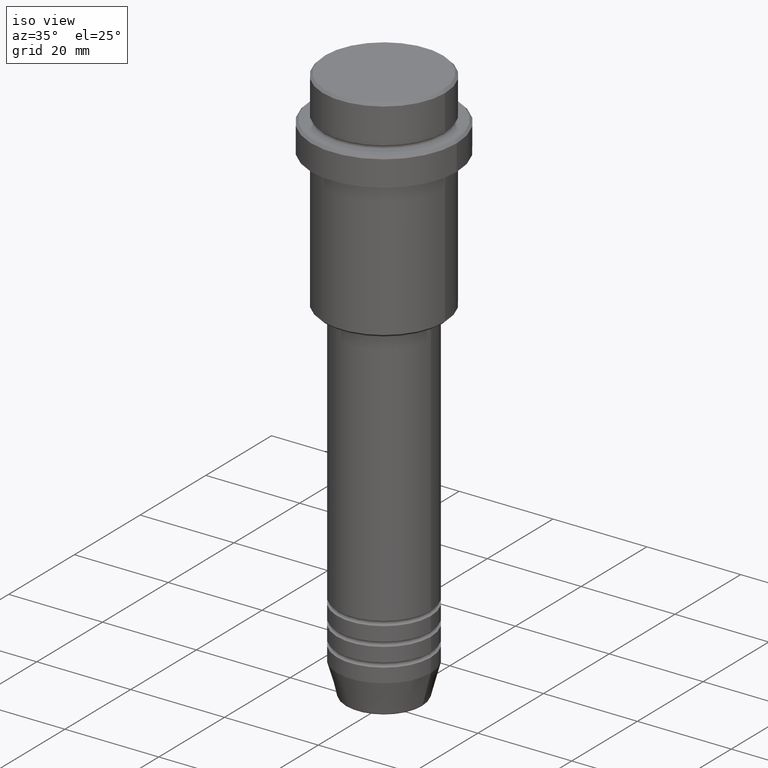
[diagram: clean part render]
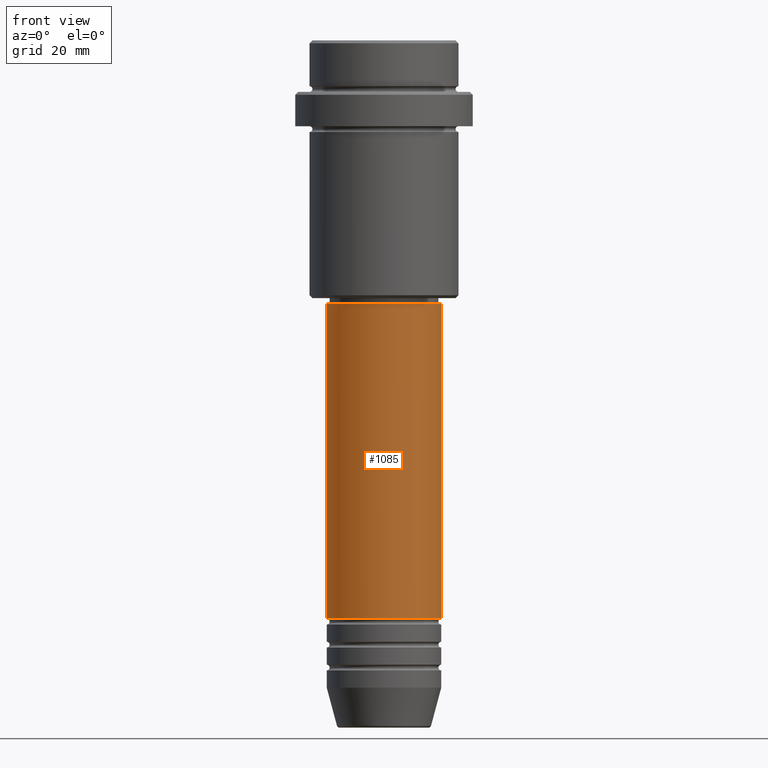
[diagram: tour spotlight — one face highlighted and labeled with its STEP entity id]
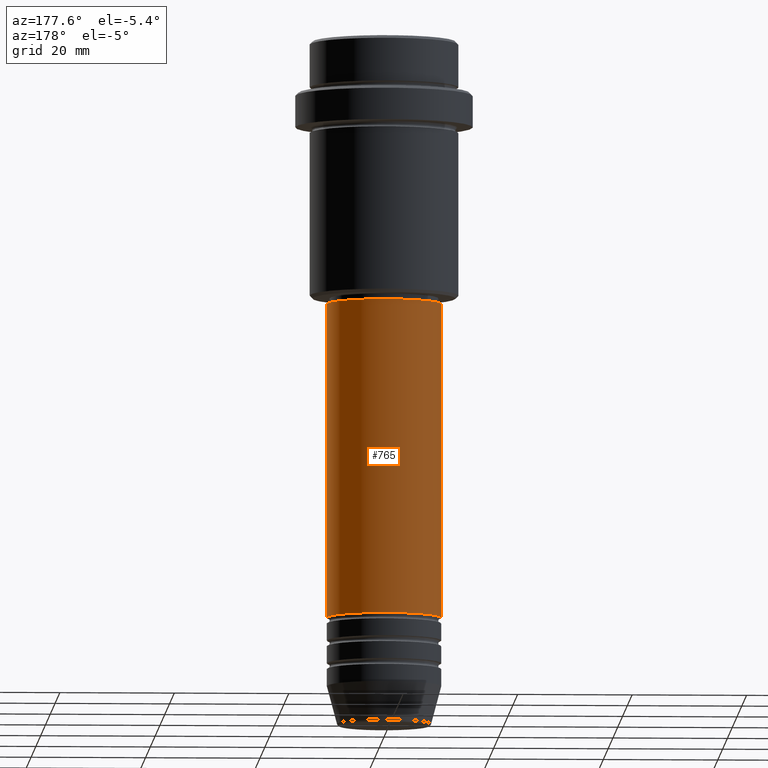
[diagram: tour spotlight — one face highlighted and labeled with its STEP entity id]
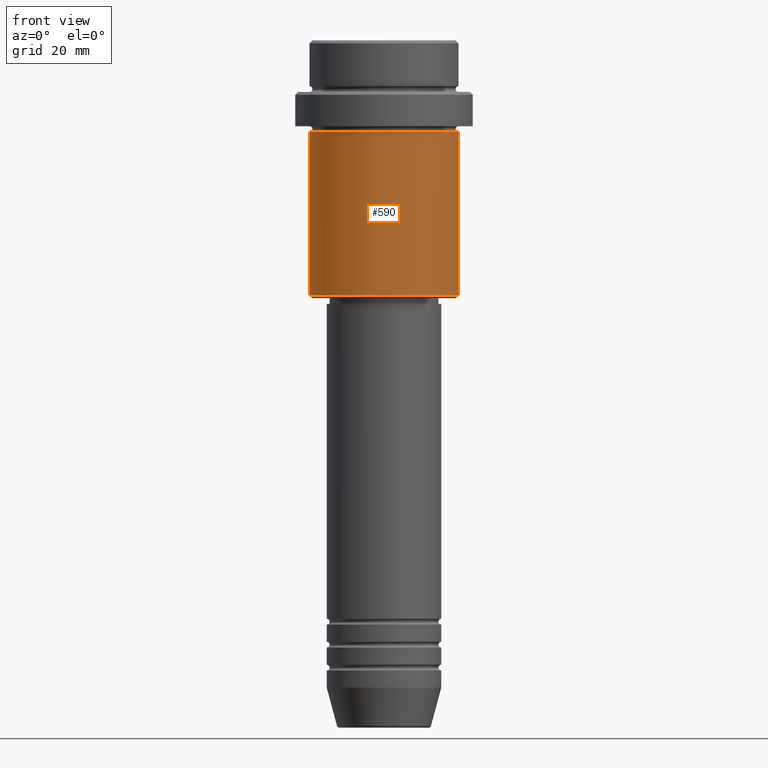
[diagram: tour spotlight — one face highlighted and labeled with its STEP entity id]
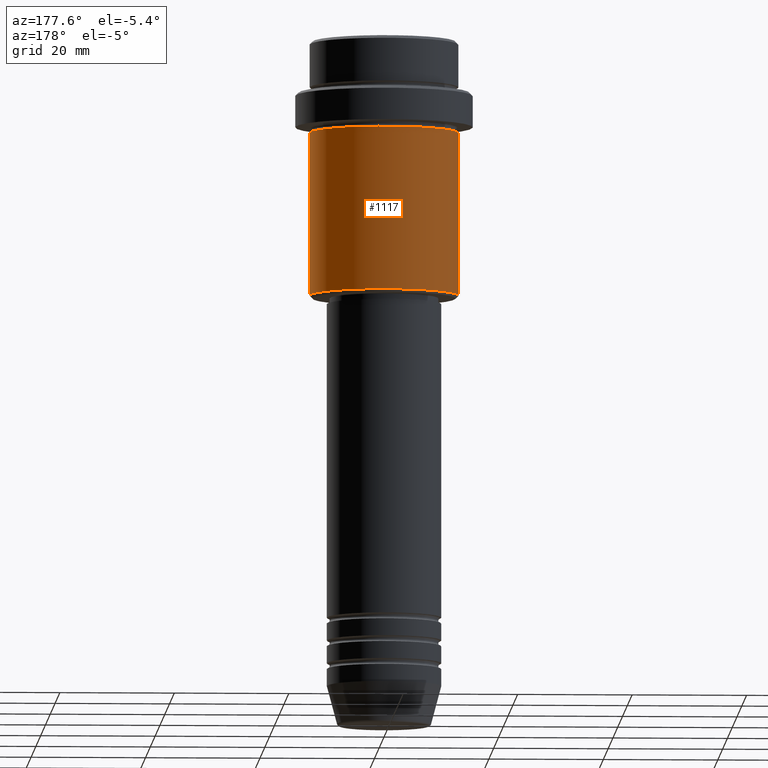
[diagram: tour spotlight — one face highlighted and labeled with its STEP entity id]
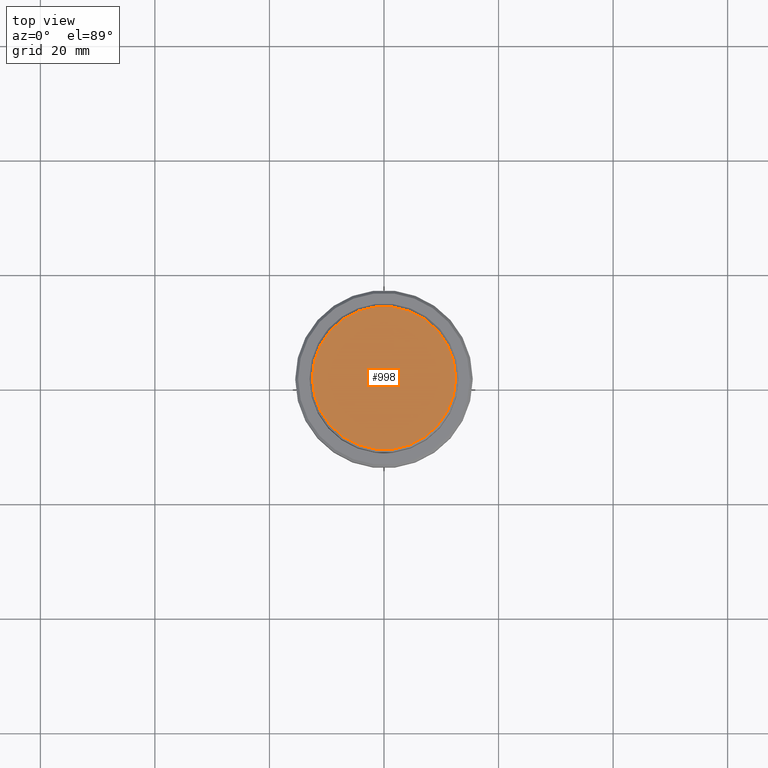
[diagram: tour spotlight — one face highlighted and labeled with its STEP entity id]
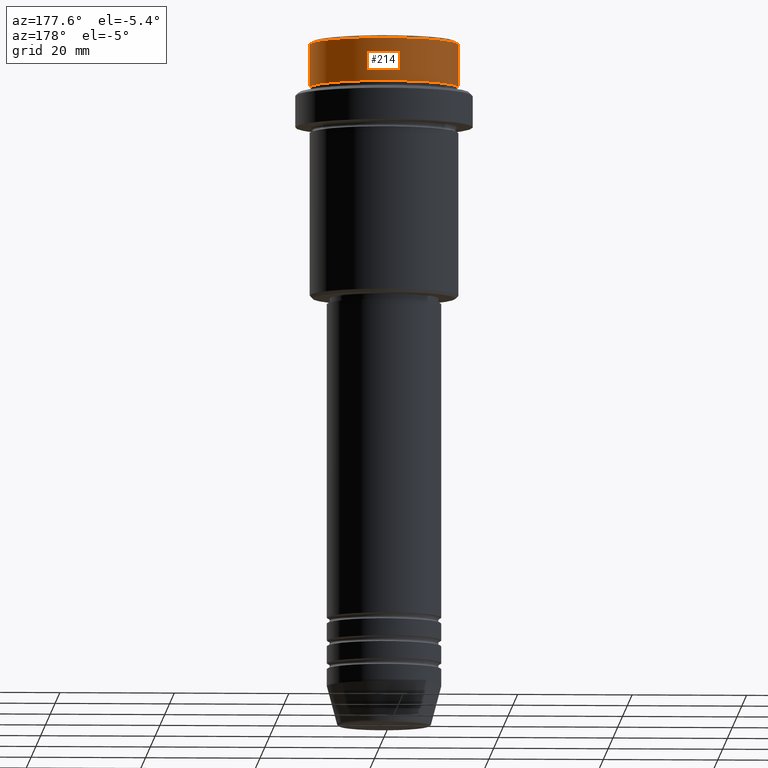
[diagram: tour spotlight — one face highlighted and labeled with its STEP entity id]
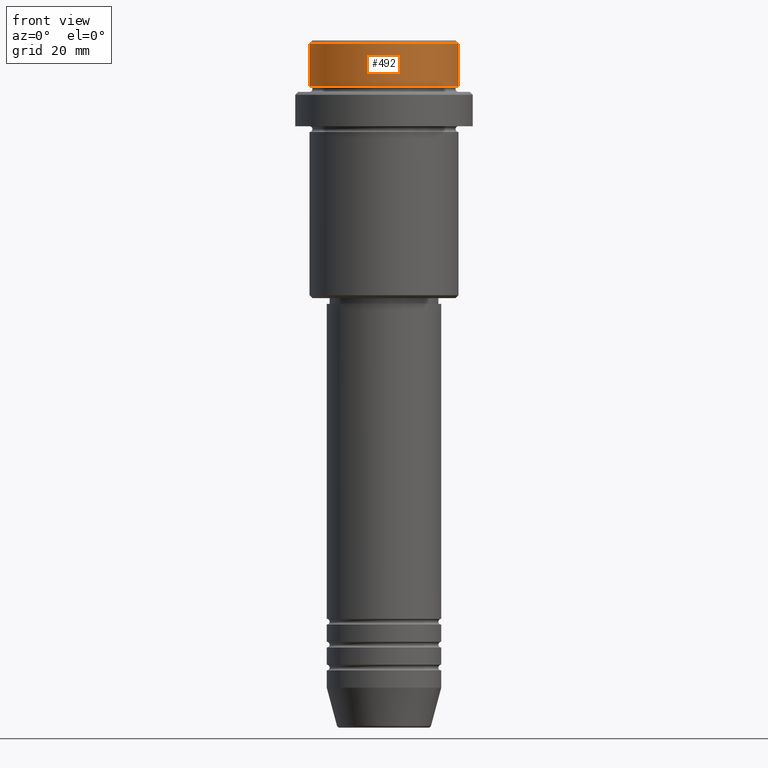
[diagram: tour spotlight — one face highlighted and labeled with its STEP entity id]
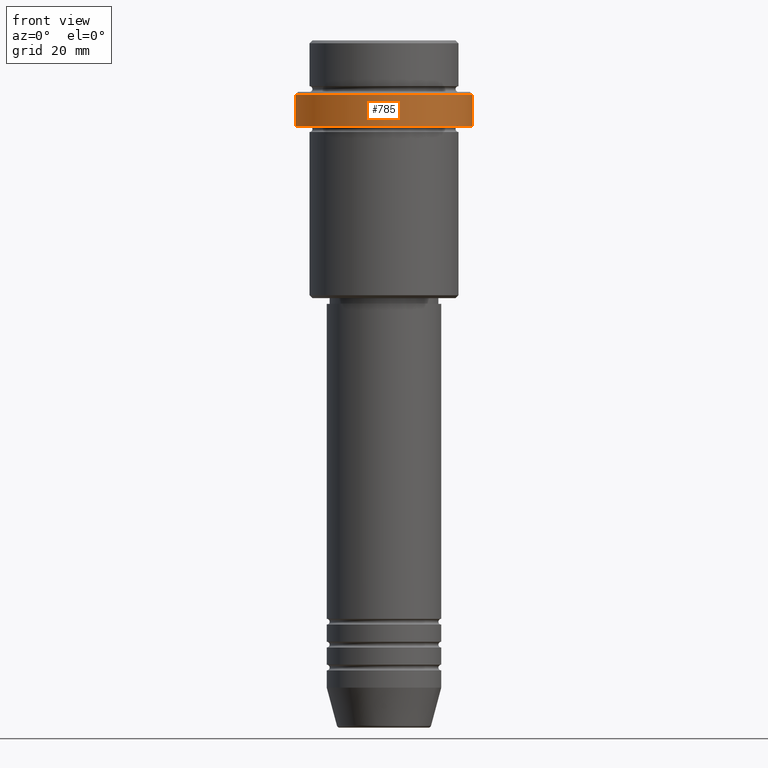
[diagram: tour spotlight — one face highlighted and labeled with its STEP entity id]
A machine part: a face-by-face anatomy tour. The part has 52 B-rep faces; the first image is the clean iso view, then the 8 largest visible faces are spotlighted one at a time (largest first), each with its STEP entity span.

Face 1 — front view, entity #1085. In plain terms, the highlighted cylindrical surface (partial cylindrical patch) has radius 10 mm, axis along (-0, -0, 1).
Definition (entity closure, byte-faithful):
#19 = CARTESIAN_POINT ( 'NONE',  ( 10.00000000000000178, 0.000000000000000000, -45.99999999999997868 ) ) ;
#38 = EDGE_CURVE ( 'NONE', #860, #1366, #849, .T. ) ;
#67 = CARTESIAN_POINT ( 'NONE',  ( -10.00000000000000178, 1.224646799147353454E-15, -45.99999999999997868 ) ) ;
#141 = CARTESIAN_POINT ( 'NONE',  ( 10.00000000000000178, 0.000000000000000000, 0.000000000000000000 ) ) ;
#174 = DIRECTION ( 'NONE',  ( -0.000000000000000000, -0.000000000000000000, 1.000000000000000000 ) ) ;
#204 = EDGE_CURVE ( 'NONE', #860, #1217, #250, .T. ) ;
#240 = DIRECTION ( 'NONE',  ( 1.000000000000000000, 0.000000000000000000, 0.000000000000000000 ) ) ;
#250 = LINE ( 'NONE', #1349, #728 ) ;
#283 = ORIENTED_EDGE ( 'NONE', *, *, #204, .F. ) ;
#297 = AXIS2_PLACEMENT_3D ( 'NONE', #1231, #174, #1056 ) ;
#359 = CYLINDRICAL_SURFACE ( 'NONE', #608, 10.00000000000000178 ) ;
#382 = DIRECTION ( 'NONE',  ( -0.000000000000000000, -0.000000000000000000, 1.000000000000000000 ) ) ;
#498 = EDGE_CURVE ( 'NONE', #1366, #531, #915, .T. ) ;
#512 = VECTOR ( 'NONE', #382, 1000.000000000000000 ) ;
#531 = VERTEX_POINT ( 'NONE', #19 ) ;
#539 = CARTESIAN_POINT ( 'NONE',  ( 10.00000000000000000, 0.000000000000000000, -100.9999999999998721 ) ) ;
#547 = CARTESIAN_POINT ( 'NONE',  ( 0.000000000000000000, 0.000000000000000000, -100.9999999999998721 ) ) ;
#583 = EDGE_CURVE ( 'NONE', #1217, #531, #1303, .T. ) ;
#608 = AXIS2_PLACEMENT_3D ( 'NONE', #999, #1325, #240 ) ;
#696 = DIRECTION ( 'NONE',  ( -0.000000000000000000, -0.000000000000000000, 1.000000000000000000 ) ) ;
#698 = ORIENTED_EDGE ( 'NONE', *, *, #583, .F. ) ;
#728 = VECTOR ( 'NONE', #696, 1000.000000000000000 ) ;
#783 = EDGE_LOOP ( 'NONE', ( #283, #1098, #1124, #698 ) ) ;
#849 = CIRCLE ( 'NONE', #1118, 10.00000000000000000 ) ;
#860 = VERTEX_POINT ( 'NONE', #1051 ) ;
#879 = DIRECTION ( 'NONE',  ( 1.000000000000000000, 0.000000000000000000, 0.000000000000000000 ) ) ;
#915 = LINE ( 'NONE', #141, #512 ) ;
#999 = CARTESIAN_POINT ( 'NONE',  ( 0.000000000000000000, 0.000000000000000000, 0.000000000000000000 ) ) ;
#1051 = CARTESIAN_POINT ( 'NONE',  ( -10.00000000000000000, 1.224646799147353256E-15, -100.9999999999998721 ) ) ;
#1056 = DIRECTION ( 'NONE',  ( 1.000000000000000000, 0.000000000000000000, 0.000000000000000000 ) ) ;
#1085 = ADVANCED_FACE ( 'NONE', ( #1340 ), #359, .T. ) ;
#1086 = DIRECTION ( 'NONE',  ( -0.000000000000000000, -0.000000000000000000, 1.000000000000000000 ) ) ;
#1098 = ORIENTED_EDGE ( 'NONE', *, *, #38, .T. ) ;
#1118 = AXIS2_PLACEMENT_3D ( 'NONE', #547, #1086, #879 ) ;
#1124 = ORIENTED_EDGE ( 'NONE', *, *, #498, .T. ) ;
#1217 = VERTEX_POINT ( 'NONE', #67 ) ;
#1231 = CARTESIAN_POINT ( 'NONE',  ( 0.000000000000000000, 0.000000000000000000, -45.99999999999997868 ) ) ;
#1303 = CIRCLE ( 'NONE', #297, 10.00000000000000178 ) ;
#1325 = DIRECTION ( 'NONE',  ( -0.000000000000000000, -0.000000000000000000, 1.000000000000000000 ) ) ;
#1340 = FACE_OUTER_BOUND ( 'NONE', #783, .T. ) ;
#1349 = CARTESIAN_POINT ( 'NONE',  ( -10.00000000000000178, 1.224646799147353454E-15, 0.000000000000000000 ) ) ;
#1366 = VERTEX_POINT ( 'NONE', #539 ) ;

Face 2 — auxiliary view, entity #765. In plain terms, the highlighted cylindrical surface (partial cylindrical patch) has radius 10 mm, axis along (-0, -0, 1).
Definition (entity closure, byte-faithful):
#19 = CARTESIAN_POINT ( 'NONE',  ( 10.00000000000000178, 0.000000000000000000, -45.99999999999997868 ) ) ;
#52 = AXIS2_PLACEMENT_3D ( 'NONE', #337, #779, #784 ) ;
#67 = CARTESIAN_POINT ( 'NONE',  ( -10.00000000000000178, 1.224646799147353454E-15, -45.99999999999997868 ) ) ;
#109 = ORIENTED_EDGE ( 'NONE', *, *, #248, .T. ) ;
#116 = FACE_OUTER_BOUND ( 'NONE', #164, .T. ) ;
#124 = DIRECTION ( 'NONE',  ( -0.000000000000000000, -0.000000000000000000, 1.000000000000000000 ) ) ;
#141 = CARTESIAN_POINT ( 'NONE',  ( 10.00000000000000178, 0.000000000000000000, 0.000000000000000000 ) ) ;
#164 = EDGE_LOOP ( 'NONE', ( #109, #887, #314, #613 ) ) ;
#200 = CARTESIAN_POINT ( 'NONE',  ( 0.000000000000000000, 0.000000000000000000, -45.99999999999997868 ) ) ;
#204 = EDGE_CURVE ( 'NONE', #860, #1217, #250, .T. ) ;
#248 = EDGE_CURVE ( 'NONE', #1366, #860, #1195, .T. ) ;
#250 = LINE ( 'NONE', #1349, #728 ) ;
#314 = ORIENTED_EDGE ( 'NONE', *, *, #453, .F. ) ;
#337 = CARTESIAN_POINT ( 'NONE',  ( 0.000000000000000000, 0.000000000000000000, -100.9999999999998721 ) ) ;
#382 = DIRECTION ( 'NONE',  ( -0.000000000000000000, -0.000000000000000000, 1.000000000000000000 ) ) ;
#425 = DIRECTION ( 'NONE',  ( 1.000000000000000000, 0.000000000000000000, 0.000000000000000000 ) ) ;
#453 = EDGE_CURVE ( 'NONE', #531, #1217, #875, .T. ) ;
#459 = CARTESIAN_POINT ( 'NONE',  ( 0.000000000000000000, 0.000000000000000000, 0.000000000000000000 ) ) ;
#463 = AXIS2_PLACEMENT_3D ( 'NONE', #200, #1397, #425 ) ;
#498 = EDGE_CURVE ( 'NONE', #1366, #531, #915, .T. ) ;
#512 = VECTOR ( 'NONE', #382, 1000.000000000000000 ) ;
#531 = VERTEX_POINT ( 'NONE', #19 ) ;
#539 = CARTESIAN_POINT ( 'NONE',  ( 10.00000000000000000, 0.000000000000000000, -100.9999999999998721 ) ) ;
#613 = ORIENTED_EDGE ( 'NONE', *, *, #498, .F. ) ;
#696 = DIRECTION ( 'NONE',  ( -0.000000000000000000, -0.000000000000000000, 1.000000000000000000 ) ) ;
#728 = VECTOR ( 'NONE', #696, 1000.000000000000000 ) ;
#765 = ADVANCED_FACE ( 'NONE', ( #116 ), #1229, .T. ) ;
#779 = DIRECTION ( 'NONE',  ( -0.000000000000000000, -0.000000000000000000, 1.000000000000000000 ) ) ;
#784 = DIRECTION ( 'NONE',  ( 1.000000000000000000, 0.000000000000000000, 0.000000000000000000 ) ) ;
#860 = VERTEX_POINT ( 'NONE', #1051 ) ;
#875 = CIRCLE ( 'NONE', #463, 10.00000000000000178 ) ;
#887 = ORIENTED_EDGE ( 'NONE', *, *, #204, .T. ) ;
#915 = LINE ( 'NONE', #141, #512 ) ;
#986 = DIRECTION ( 'NONE',  ( 1.000000000000000000, 0.000000000000000000, 0.000000000000000000 ) ) ;
#1051 = CARTESIAN_POINT ( 'NONE',  ( -10.00000000000000000, 1.224646799147353256E-15, -100.9999999999998721 ) ) ;
#1142 = AXIS2_PLACEMENT_3D ( 'NONE', #459, #124, #986 ) ;
#1195 = CIRCLE ( 'NONE', #52, 10.00000000000000000 ) ;
#1217 = VERTEX_POINT ( 'NONE', #67 ) ;
#1229 = CYLINDRICAL_SURFACE ( 'NONE', #1142, 10.00000000000000178 ) ;
#1349 = CARTESIAN_POINT ( 'NONE',  ( -10.00000000000000178, 1.224646799147353454E-15, 0.000000000000000000 ) ) ;
#1366 = VERTEX_POINT ( 'NONE', #539 ) ;
#1397 = DIRECTION ( 'NONE',  ( -0.000000000000000000, -0.000000000000000000, 1.000000000000000000 ) ) ;

Face 3 — front view, entity #590. In plain terms, the highlighted cylindrical surface (partial cylindrical patch) has radius 13 mm, axis along (-0, -0, 1).
Definition (entity closure, byte-faithful):
#12 = CARTESIAN_POINT ( 'NONE',  ( 13.00000000000000000, 0.000000000000000000, -44.50000000000000000 ) ) ;
#69 = EDGE_CURVE ( 'NONE', #955, #1063, #1415, .T. ) ;
#102 = CIRCLE ( 'NONE', #1280, 13.00000000000000000 ) ;
#115 = ORIENTED_EDGE ( 'NONE', *, *, #69, .F. ) ;
#162 = CYLINDRICAL_SURFACE ( 'NONE', #1034, 13.00000000000000000 ) ;
#163 = LINE ( 'NONE', #1370, #444 ) ;
#167 = VERTEX_POINT ( 'NONE', #12 ) ;
#186 = DIRECTION ( 'NONE',  ( 1.000000000000000000, 0.000000000000000000, 0.000000000000000000 ) ) ;
#228 = DIRECTION ( 'NONE',  ( -0.000000000000000000, -0.000000000000000000, 1.000000000000000000 ) ) ;
#239 = VERTEX_POINT ( 'NONE', #1318 ) ;
#265 = DIRECTION ( 'NONE',  ( -1.000000000000000000, 0.000000000000000000, 0.000000000000000000 ) ) ;
#291 = CARTESIAN_POINT ( 'NONE',  ( 0.000000000000000000, 0.000000000000000000, 0.000000000000000000 ) ) ;
#322 = EDGE_LOOP ( 'NONE', ( #115, #418, #1146, #1168 ) ) ;
#327 = CARTESIAN_POINT ( 'NONE',  ( -13.00000000000000000, 1.592040838891559095E-15, -16.00000000000000000 ) ) ;
#370 = DIRECTION ( 'NONE',  ( -0.000000000000000000, -0.000000000000000000, 1.000000000000000000 ) ) ;
#374 = CARTESIAN_POINT ( 'NONE',  ( -13.00000000000000000, 1.592040838891559095E-15, -44.50000000000000000 ) ) ;
#379 = CARTESIAN_POINT ( 'NONE',  ( 0.000000000000000000, 0.000000000000000000, -16.00000000000000000 ) ) ;
#398 = DIRECTION ( 'NONE',  ( -0.000000000000000000, -0.000000000000000000, 1.000000000000000000 ) ) ;
#418 = ORIENTED_EDGE ( 'NONE', *, *, #647, .T. ) ;
#424 = FACE_OUTER_BOUND ( 'NONE', #322, .T. ) ;
#444 = VECTOR ( 'NONE', #398, 1000.000000000000000 ) ;
#537 = AXIS2_PLACEMENT_3D ( 'NONE', #379, #1129, #801 ) ;
#590 = ADVANCED_FACE ( 'NONE', ( #424 ), #162, .T. ) ;
#647 = EDGE_CURVE ( 'NONE', #955, #167, #102, .T. ) ;
#687 = VECTOR ( 'NONE', #228, 1000.000000000000000 ) ;
#718 = EDGE_CURVE ( 'NONE', #167, #239, #163, .T. ) ;
#730 = DIRECTION ( 'NONE',  ( -0.000000000000000000, -0.000000000000000000, 1.000000000000000000 ) ) ;
#801 = DIRECTION ( 'NONE',  ( 1.000000000000000000, 0.000000000000000000, 0.000000000000000000 ) ) ;
#931 = EDGE_CURVE ( 'NONE', #1063, #239, #1143, .T. ) ;
#955 = VERTEX_POINT ( 'NONE', #374 ) ;
#1034 = AXIS2_PLACEMENT_3D ( 'NONE', #291, #730, #186 ) ;
#1063 = VERTEX_POINT ( 'NONE', #327 ) ;
#1129 = DIRECTION ( 'NONE',  ( -0.000000000000000000, -0.000000000000000000, 1.000000000000000000 ) ) ;
#1137 = CARTESIAN_POINT ( 'NONE',  ( 0.000000000000000000, 0.000000000000000000, -44.50000000000000000 ) ) ;
#1143 = CIRCLE ( 'NONE', #537, 13.00000000000000000 ) ;
#1146 = ORIENTED_EDGE ( 'NONE', *, *, #718, .T. ) ;
#1168 = ORIENTED_EDGE ( 'NONE', *, *, #931, .F. ) ;
#1206 = CARTESIAN_POINT ( 'NONE',  ( -13.00000000000000000, 1.592040838891559095E-15, 0.000000000000000000 ) ) ;
#1280 = AXIS2_PLACEMENT_3D ( 'NONE', #1137, #370, #265 ) ;
#1318 = CARTESIAN_POINT ( 'NONE',  ( 13.00000000000000000, 0.000000000000000000, -16.00000000000000000 ) ) ;
#1370 = CARTESIAN_POINT ( 'NONE',  ( 13.00000000000000000, 0.000000000000000000, 0.000000000000000000 ) ) ;
#1415 = LINE ( 'NONE', #1206, #687 ) ;

Face 4 — auxiliary view, entity #1117. In plain terms, the highlighted cylindrical surface (partial cylindrical patch) has radius 13 mm, axis along (-0, -0, 1).
Definition (entity closure, byte-faithful):
#3 = ORIENTED_EDGE ( 'NONE', *, *, #69, .T. ) ;
#12 = CARTESIAN_POINT ( 'NONE',  ( 13.00000000000000000, 0.000000000000000000, -44.50000000000000000 ) ) ;
#50 = CYLINDRICAL_SURFACE ( 'NONE', #878, 13.00000000000000000 ) ;
#69 = EDGE_CURVE ( 'NONE', #955, #1063, #1415, .T. ) ;
#120 = CARTESIAN_POINT ( 'NONE',  ( 0.000000000000000000, 0.000000000000000000, -16.00000000000000000 ) ) ;
#155 = DIRECTION ( 'NONE',  ( -0.000000000000000000, -0.000000000000000000, 1.000000000000000000 ) ) ;
#163 = LINE ( 'NONE', #1370, #444 ) ;
#167 = VERTEX_POINT ( 'NONE', #12 ) ;
#217 = EDGE_CURVE ( 'NONE', #239, #1063, #889, .T. ) ;
#221 = DIRECTION ( 'NONE',  ( 1.000000000000000000, 0.000000000000000000, 0.000000000000000000 ) ) ;
#228 = DIRECTION ( 'NONE',  ( -0.000000000000000000, -0.000000000000000000, 1.000000000000000000 ) ) ;
#239 = VERTEX_POINT ( 'NONE', #1318 ) ;
#327 = CARTESIAN_POINT ( 'NONE',  ( -13.00000000000000000, 1.592040838891559095E-15, -16.00000000000000000 ) ) ;
#346 = DIRECTION ( 'NONE',  ( 1.000000000000000000, 0.000000000000000000, 0.000000000000000000 ) ) ;
#374 = CARTESIAN_POINT ( 'NONE',  ( -13.00000000000000000, 1.592040838891559095E-15, -44.50000000000000000 ) ) ;
#398 = DIRECTION ( 'NONE',  ( -0.000000000000000000, -0.000000000000000000, 1.000000000000000000 ) ) ;
#414 = ORIENTED_EDGE ( 'NONE', *, *, #635, .T. ) ;
#444 = VECTOR ( 'NONE', #398, 1000.000000000000000 ) ;
#483 = DIRECTION ( 'NONE',  ( -0.000000000000000000, -0.000000000000000000, 1.000000000000000000 ) ) ;
#490 = AXIS2_PLACEMENT_3D ( 'NONE', #1350, #155, #1128 ) ;
#514 = CARTESIAN_POINT ( 'NONE',  ( 0.000000000000000000, 0.000000000000000000, 0.000000000000000000 ) ) ;
#635 = EDGE_CURVE ( 'NONE', #167, #955, #945, .T. ) ;
#687 = VECTOR ( 'NONE', #228, 1000.000000000000000 ) ;
#718 = EDGE_CURVE ( 'NONE', #167, #239, #163, .T. ) ;
#789 = FACE_OUTER_BOUND ( 'NONE', #839, .T. ) ;
#839 = EDGE_LOOP ( 'NONE', ( #414, #3, #845, #985 ) ) ;
#845 = ORIENTED_EDGE ( 'NONE', *, *, #217, .F. ) ;
#878 = AXIS2_PLACEMENT_3D ( 'NONE', #514, #1352, #221 ) ;
#889 = CIRCLE ( 'NONE', #1277, 13.00000000000000000 ) ;
#945 = CIRCLE ( 'NONE', #490, 13.00000000000000000 ) ;
#955 = VERTEX_POINT ( 'NONE', #374 ) ;
#985 = ORIENTED_EDGE ( 'NONE', *, *, #718, .F. ) ;
#1063 = VERTEX_POINT ( 'NONE', #327 ) ;
#1117 = ADVANCED_FACE ( 'NONE', ( #789 ), #50, .T. ) ;
#1128 = DIRECTION ( 'NONE',  ( -1.000000000000000000, 0.000000000000000000, 0.000000000000000000 ) ) ;
#1206 = CARTESIAN_POINT ( 'NONE',  ( -13.00000000000000000, 1.592040838891559095E-15, 0.000000000000000000 ) ) ;
#1277 = AXIS2_PLACEMENT_3D ( 'NONE', #120, #483, #346 ) ;
#1318 = CARTESIAN_POINT ( 'NONE',  ( 13.00000000000000000, 0.000000000000000000, -16.00000000000000000 ) ) ;
#1350 = CARTESIAN_POINT ( 'NONE',  ( 0.000000000000000000, 0.000000000000000000, -44.50000000000000000 ) ) ;
#1352 = DIRECTION ( 'NONE',  ( -0.000000000000000000, -0.000000000000000000, 1.000000000000000000 ) ) ;
#1370 = CARTESIAN_POINT ( 'NONE',  ( 13.00000000000000000, 0.000000000000000000, 0.000000000000000000 ) ) ;
#1415 = LINE ( 'NONE', #1206, #687 ) ;

Face 5 — top view, entity #998. In plain terms, the highlighted planar face has unit normal (0, -0, 1).
Definition (entity closure, byte-faithful):
#104 = AXIS2_PLACEMENT_3D ( 'NONE', #199, #841, #389 ) ;
#118 = CARTESIAN_POINT ( 'NONE',  ( 0.000000000000000000, 0.000000000000000000, 0.000000000000000000 ) ) ;
#182 = CIRCLE ( 'NONE', #1082, 12.49999999999997158 ) ;
#199 = CARTESIAN_POINT ( 'NONE',  ( 0.000000000000000000, 0.000000000000000000, 0.000000000000000000 ) ) ;
#389 = DIRECTION ( 'NONE',  ( 1.000000000000000000, 0.000000000000000000, 0.000000000000000000 ) ) ;
#408 = PLANE ( 'NONE',  #104 ) ;
#446 = DIRECTION ( 'NONE',  ( -0.000000000000000000, -0.000000000000000000, 1.000000000000000000 ) ) ;
#534 = EDGE_CURVE ( 'NONE', #693, #1257, #1259, .T. ) ;
#540 = EDGE_LOOP ( 'NONE', ( #1003, #661 ) ) ;
#609 = CARTESIAN_POINT ( 'NONE',  ( 12.49999999999997158, 1.561424668912873336E-15, 0.000000000000000000 ) ) ;
#661 = ORIENTED_EDGE ( 'NONE', *, *, #534, .T. ) ;
#693 = VERTEX_POINT ( 'NONE', #609 ) ;
#747 = FACE_OUTER_BOUND ( 'NONE', #540, .T. ) ;
#806 = DIRECTION ( 'NONE',  ( 1.000000000000000000, 0.000000000000000000, 0.000000000000000000 ) ) ;
#841 = DIRECTION ( 'NONE',  ( 0.000000000000000000, -0.000000000000000000, 1.000000000000000000 ) ) ;
#998 = ADVANCED_FACE ( 'NONE', ( #747 ), #408, .T. ) ;
#1003 = ORIENTED_EDGE ( 'NONE', *, *, #1015, .T. ) ;
#1015 = EDGE_CURVE ( 'NONE', #1257, #693, #182, .T. ) ;
#1082 = AXIS2_PLACEMENT_3D ( 'NONE', #1216, #446, #1209 ) ;
#1087 = CARTESIAN_POINT ( 'NONE',  ( -12.49999999999997158, 0.000000000000000000, 0.000000000000000000 ) ) ;
#1209 = DIRECTION ( 'NONE',  ( 1.000000000000000000, 0.000000000000000000, 0.000000000000000000 ) ) ;
#1216 = CARTESIAN_POINT ( 'NONE',  ( 0.000000000000000000, 0.000000000000000000, 0.000000000000000000 ) ) ;
#1233 = AXIS2_PLACEMENT_3D ( 'NONE', #118, #1247, #806 ) ;
#1247 = DIRECTION ( 'NONE',  ( -0.000000000000000000, -0.000000000000000000, 1.000000000000000000 ) ) ;
#1257 = VERTEX_POINT ( 'NONE', #1087 ) ;
#1259 = CIRCLE ( 'NONE', #1233, 12.49999999999997158 ) ;

Face 6 — auxiliary view, entity #214. In plain terms, the highlighted cylindrical surface (partial cylindrical patch) has radius 13 mm, axis along (-0, -0, 1).
Definition (entity closure, byte-faithful):
#9 = AXIS2_PLACEMENT_3D ( 'NONE', #366, #1242, #1354 ) ;
#25 = VERTEX_POINT ( 'NONE', #963 ) ;
#56 = ORIENTED_EDGE ( 'NONE', *, *, #1416, .F. ) ;
#76 = AXIS2_PLACEMENT_3D ( 'NONE', #567, #674, #137 ) ;
#137 = DIRECTION ( 'NONE',  ( 1.000000000000000000, 0.000000000000000000, 0.000000000000000000 ) ) ;
#152 = AXIS2_PLACEMENT_3D ( 'NONE', #721, #751, #202 ) ;
#202 = DIRECTION ( 'NONE',  ( 1.000000000000000000, 0.000000000000000000, 0.000000000000000000 ) ) ;
#214 = ADVANCED_FACE ( 'NONE', ( #471 ), #455, .T. ) ;
#274 = VECTOR ( 'NONE', #1145, 1000.000000000000000 ) ;
#320 = EDGE_CURVE ( 'NONE', #871, #452, #1278, .T. ) ;
#347 = CARTESIAN_POINT ( 'NONE',  ( 12.99999999999999822, 0.000000000000000000, 0.000000000000000000 ) ) ;
#366 = CARTESIAN_POINT ( 'NONE',  ( 0.000000000000000000, 0.000000000000000000, -7.999999999999998224 ) ) ;
#385 = CARTESIAN_POINT ( 'NONE',  ( -12.99999999999999822, 1.592040838891558898E-15, 0.000000000000000000 ) ) ;
#452 = VERTEX_POINT ( 'NONE', #1176 ) ;
#455 = CYLINDRICAL_SURFACE ( 'NONE', #76, 12.99999999999999822 ) ;
#471 = FACE_OUTER_BOUND ( 'NONE', #754, .T. ) ;
#541 = EDGE_CURVE ( 'NONE', #897, #25, #651, .T. ) ;
#567 = CARTESIAN_POINT ( 'NONE',  ( 0.000000000000000000, 0.000000000000000000, 0.000000000000000000 ) ) ;
#610 = ORIENTED_EDGE ( 'NONE', *, *, #320, .T. ) ;
#651 = CIRCLE ( 'NONE', #9, 12.99999999999999822 ) ;
#674 = DIRECTION ( 'NONE',  ( -0.000000000000000000, -0.000000000000000000, 1.000000000000000000 ) ) ;
#701 = EDGE_CURVE ( 'NONE', #25, #871, #703, .T. ) ;
#703 = LINE ( 'NONE', #385, #274 ) ;
#708 = VECTOR ( 'NONE', #1314, 1000.000000000000000 ) ;
#721 = CARTESIAN_POINT ( 'NONE',  ( 0.000000000000000000, 0.000000000000000000, -0.5000000000000176525 ) ) ;
#751 = DIRECTION ( 'NONE',  ( 0.000000000000000000, 0.000000000000000000, -1.000000000000000000 ) ) ;
#754 = EDGE_LOOP ( 'NONE', ( #1244, #1002, #610, #56 ) ) ;
#871 = VERTEX_POINT ( 'NONE', #1270 ) ;
#897 = VERTEX_POINT ( 'NONE', #1227 ) ;
#963 = CARTESIAN_POINT ( 'NONE',  ( -12.99999999999999822, 1.592040838891558898E-15, -7.999999999999998224 ) ) ;
#1002 = ORIENTED_EDGE ( 'NONE', *, *, #701, .T. ) ;
#1096 = LINE ( 'NONE', #347, #708 ) ;
#1145 = DIRECTION ( 'NONE',  ( -0.000000000000000000, -0.000000000000000000, 1.000000000000000000 ) ) ;
#1176 = CARTESIAN_POINT ( 'NONE',  ( 12.99999999999999822, 0.000000000000000000, -0.5000000000000176525 ) ) ;
#1227 = CARTESIAN_POINT ( 'NONE',  ( 12.99999999999999822, 0.000000000000000000, -7.999999999999998224 ) ) ;
#1242 = DIRECTION ( 'NONE',  ( -0.000000000000000000, -0.000000000000000000, 1.000000000000000000 ) ) ;
#1244 = ORIENTED_EDGE ( 'NONE', *, *, #541, .T. ) ;
#1270 = CARTESIAN_POINT ( 'NONE',  ( -12.99999999999999822, 1.592040838891558898E-15, -0.5000000000000176525 ) ) ;
#1278 = CIRCLE ( 'NONE', #152, 12.99999999999999822 ) ;
#1314 = DIRECTION ( 'NONE',  ( -0.000000000000000000, -0.000000000000000000, 1.000000000000000000 ) ) ;
#1354 = DIRECTION ( 'NONE',  ( 1.000000000000000000, 0.000000000000000000, 0.000000000000000000 ) ) ;
#1416 = EDGE_CURVE ( 'NONE', #897, #452, #1096, .T. ) ;

Face 7 — front view, entity #492. In plain terms, the highlighted cylindrical surface (partial cylindrical patch) has radius 13 mm, axis along (-0, -0, 1).
Definition (entity closure, byte-faithful):
#14 = FACE_OUTER_BOUND ( 'NONE', #1050, .T. ) ;
#20 = EDGE_CURVE ( 'NONE', #452, #871, #393, .T. ) ;
#25 = VERTEX_POINT ( 'NONE', #963 ) ;
#270 = CYLINDRICAL_SURFACE ( 'NONE', #578, 12.99999999999999822 ) ;
#274 = VECTOR ( 'NONE', #1145, 1000.000000000000000 ) ;
#325 = ORIENTED_EDGE ( 'NONE', *, *, #1311, .T. ) ;
#347 = CARTESIAN_POINT ( 'NONE',  ( 12.99999999999999822, 0.000000000000000000, 0.000000000000000000 ) ) ;
#385 = CARTESIAN_POINT ( 'NONE',  ( -12.99999999999999822, 1.592040838891558898E-15, 0.000000000000000000 ) ) ;
#393 = CIRCLE ( 'NONE', #442, 12.99999999999999822 ) ;
#442 = AXIS2_PLACEMENT_3D ( 'NONE', #1189, #761, #1197 ) ;
#452 = VERTEX_POINT ( 'NONE', #1176 ) ;
#458 = ORIENTED_EDGE ( 'NONE', *, *, #701, .F. ) ;
#492 = ADVANCED_FACE ( 'NONE', ( #14 ), #270, .T. ) ;
#578 = AXIS2_PLACEMENT_3D ( 'NONE', #589, #1361, #1125 ) ;
#588 = ORIENTED_EDGE ( 'NONE', *, *, #1416, .T. ) ;
#589 = CARTESIAN_POINT ( 'NONE',  ( 0.000000000000000000, 0.000000000000000000, 0.000000000000000000 ) ) ;
#660 = DIRECTION ( 'NONE',  ( -0.000000000000000000, -0.000000000000000000, 1.000000000000000000 ) ) ;
#701 = EDGE_CURVE ( 'NONE', #25, #871, #703, .T. ) ;
#703 = LINE ( 'NONE', #385, #274 ) ;
#708 = VECTOR ( 'NONE', #1314, 1000.000000000000000 ) ;
#761 = DIRECTION ( 'NONE',  ( 0.000000000000000000, 0.000000000000000000, -1.000000000000000000 ) ) ;
#821 = AXIS2_PLACEMENT_3D ( 'NONE', #1302, #660, #1190 ) ;
#871 = VERTEX_POINT ( 'NONE', #1270 ) ;
#897 = VERTEX_POINT ( 'NONE', #1227 ) ;
#960 = CIRCLE ( 'NONE', #821, 12.99999999999999822 ) ;
#963 = CARTESIAN_POINT ( 'NONE',  ( -12.99999999999999822, 1.592040838891558898E-15, -7.999999999999998224 ) ) ;
#1050 = EDGE_LOOP ( 'NONE', ( #458, #325, #588, #1067 ) ) ;
#1067 = ORIENTED_EDGE ( 'NONE', *, *, #20, .T. ) ;
#1096 = LINE ( 'NONE', #347, #708 ) ;
#1125 = DIRECTION ( 'NONE',  ( 1.000000000000000000, 0.000000000000000000, 0.000000000000000000 ) ) ;
#1145 = DIRECTION ( 'NONE',  ( -0.000000000000000000, -0.000000000000000000, 1.000000000000000000 ) ) ;
#1176 = CARTESIAN_POINT ( 'NONE',  ( 12.99999999999999822, 0.000000000000000000, -0.5000000000000176525 ) ) ;
#1189 = CARTESIAN_POINT ( 'NONE',  ( 0.000000000000000000, 0.000000000000000000, -0.5000000000000176525 ) ) ;
#1190 = DIRECTION ( 'NONE',  ( 1.000000000000000000, 0.000000000000000000, 0.000000000000000000 ) ) ;
#1197 = DIRECTION ( 'NONE',  ( 1.000000000000000000, 0.000000000000000000, 0.000000000000000000 ) ) ;
#1227 = CARTESIAN_POINT ( 'NONE',  ( 12.99999999999999822, 0.000000000000000000, -7.999999999999998224 ) ) ;
#1270 = CARTESIAN_POINT ( 'NONE',  ( -12.99999999999999822, 1.592040838891558898E-15, -0.5000000000000176525 ) ) ;
#1302 = CARTESIAN_POINT ( 'NONE',  ( 0.000000000000000000, 0.000000000000000000, -7.999999999999998224 ) ) ;
#1311 = EDGE_CURVE ( 'NONE', #25, #897, #960, .T. ) ;
#1314 = DIRECTION ( 'NONE',  ( -0.000000000000000000, -0.000000000000000000, 1.000000000000000000 ) ) ;
#1361 = DIRECTION ( 'NONE',  ( -0.000000000000000000, -0.000000000000000000, 1.000000000000000000 ) ) ;
#1416 = EDGE_CURVE ( 'NONE', #897, #452, #1096, .T. ) ;

Face 8 — front view, entity #785. In plain terms, the highlighted cylindrical surface (partial cylindrical patch) has radius 15.5 mm, axis along (-0, -0, 1).
Definition (entity closure, byte-faithful):
#24 = CYLINDRICAL_SURFACE ( 'NONE', #1080, 15.50000000000000000 ) ;
#30 = CIRCLE ( 'NONE', #234, 15.50000000000000000 ) ;
#42 = VERTEX_POINT ( 'NONE', #555 ) ;
#78 = EDGE_CURVE ( 'NONE', #42, #775, #940, .T. ) ;
#103 = ORIENTED_EDGE ( 'NONE', *, *, #616, .T. ) ;
#132 = CARTESIAN_POINT ( 'NONE',  ( 15.50000000000000000, 0.000000000000000000, -15.00000000000000000 ) ) ;
#159 = CARTESIAN_POINT ( 'NONE',  ( 0.000000000000000000, 0.000000000000000000, 0.000000000000000000 ) ) ;
#173 = ORIENTED_EDGE ( 'NONE', *, *, #825, .T. ) ;
#177 = VECTOR ( 'NONE', #1065, 1000.000000000000000 ) ;
#223 = DIRECTION ( 'NONE',  ( 0.000000000000000000, 0.000000000000000000, -1.000000000000000000 ) ) ;
#234 = AXIS2_PLACEMENT_3D ( 'NONE', #947, #1044, #720 ) ;
#262 = DIRECTION ( 'NONE',  ( 1.000000000000000000, 0.000000000000000000, 0.000000000000000000 ) ) ;
#280 = ORIENTED_EDGE ( 'NONE', *, *, #284, .F. ) ;
#284 = EDGE_CURVE ( 'NONE', #735, #775, #636, .T. ) ;
#303 = CARTESIAN_POINT ( 'NONE',  ( -15.50000000000000000, 1.898202538678397557E-15, 0.000000000000000000 ) ) ;
#430 = CARTESIAN_POINT ( 'NONE',  ( 0.000000000000000000, 0.000000000000000000, -9.499999999999998224 ) ) ;
#536 = CARTESIAN_POINT ( 'NONE',  ( 15.50000000000000000, 0.000000000000000000, 0.000000000000000000 ) ) ;
#555 = CARTESIAN_POINT ( 'NONE',  ( 15.50000000000000000, 0.000000000000000000, -9.499999999999998224 ) ) ;
#597 = EDGE_LOOP ( 'NONE', ( #280, #103, #173, #1417 ) ) ;
#616 = EDGE_CURVE ( 'NONE', #735, #937, #30, .T. ) ;
#636 = LINE ( 'NONE', #303, #177 ) ;
#720 = DIRECTION ( 'NONE',  ( 1.000000000000000000, 0.000000000000000000, 0.000000000000000000 ) ) ;
#735 = VERTEX_POINT ( 'NONE', #1017 ) ;
#752 = LINE ( 'NONE', #536, #1305 ) ;
#775 = VERTEX_POINT ( 'NONE', #1203 ) ;
#785 = ADVANCED_FACE ( 'NONE', ( #1099 ), #24, .T. ) ;
#825 = EDGE_CURVE ( 'NONE', #937, #42, #752, .T. ) ;
#933 = DIRECTION ( 'NONE',  ( -0.000000000000000000, -0.000000000000000000, 1.000000000000000000 ) ) ;
#937 = VERTEX_POINT ( 'NONE', #132 ) ;
#940 = CIRCLE ( 'NONE', #1192, 15.50000000000000000 ) ;
#947 = CARTESIAN_POINT ( 'NONE',  ( 0.000000000000000000, 0.000000000000000000, -15.00000000000000000 ) ) ;
#1017 = CARTESIAN_POINT ( 'NONE',  ( -15.50000000000000000, 1.898202538678397557E-15, -15.00000000000000000 ) ) ;
#1044 = DIRECTION ( 'NONE',  ( -0.000000000000000000, -0.000000000000000000, 1.000000000000000000 ) ) ;
#1065 = DIRECTION ( 'NONE',  ( -0.000000000000000000, -0.000000000000000000, 1.000000000000000000 ) ) ;
#1080 = AXIS2_PLACEMENT_3D ( 'NONE', #159, #933, #262 ) ;
#1099 = FACE_OUTER_BOUND ( 'NONE', #597, .T. ) ;
#1179 = DIRECTION ( 'NONE',  ( -0.000000000000000000, -0.000000000000000000, 1.000000000000000000 ) ) ;
#1192 = AXIS2_PLACEMENT_3D ( 'NONE', #430, #223, #1313 ) ;
#1203 = CARTESIAN_POINT ( 'NONE',  ( -15.50000000000000000, 1.898202538678397557E-15, -9.499999999999998224 ) ) ;
#1305 = VECTOR ( 'NONE', #1179, 1000.000000000000000 ) ;
#1313 = DIRECTION ( 'NONE',  ( 1.000000000000000000, 0.000000000000000000, 0.000000000000000000 ) ) ;
#1417 = ORIENTED_EDGE ( 'NONE', *, *, #78, .T. ) ;